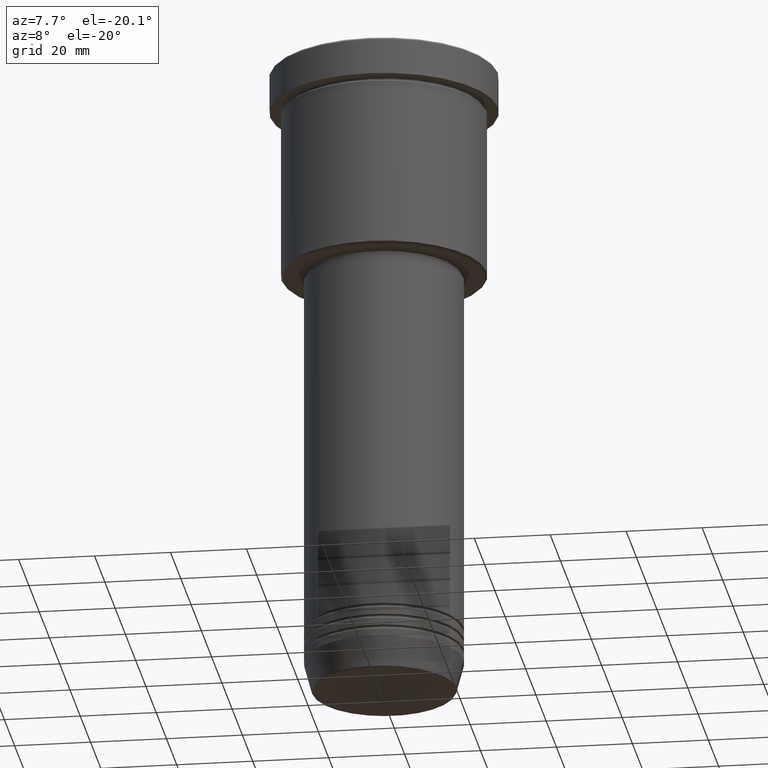
[diagram: clean part render]
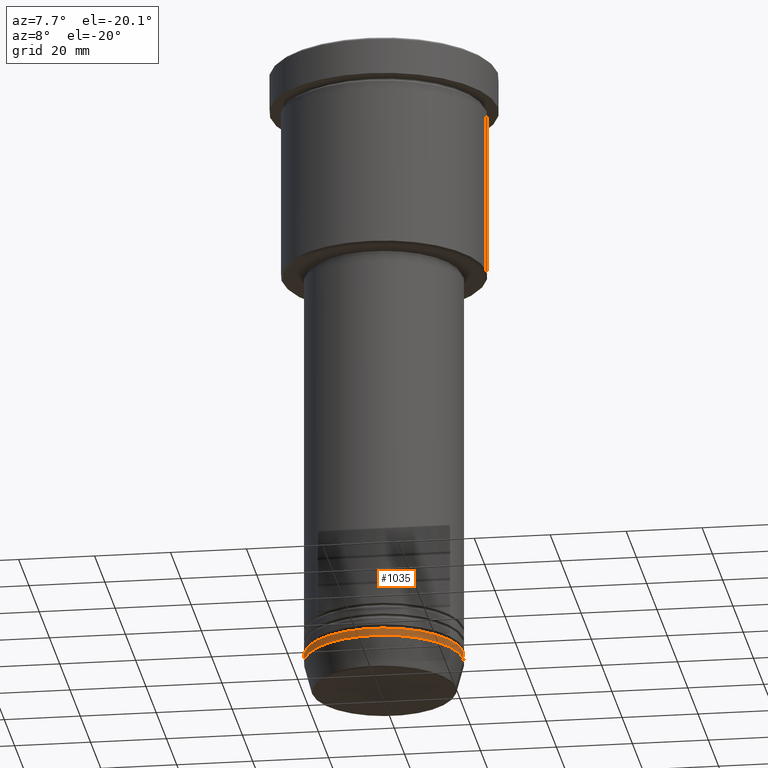
[diagram: same view with one face highlighted and labeled with its STEP entity id]
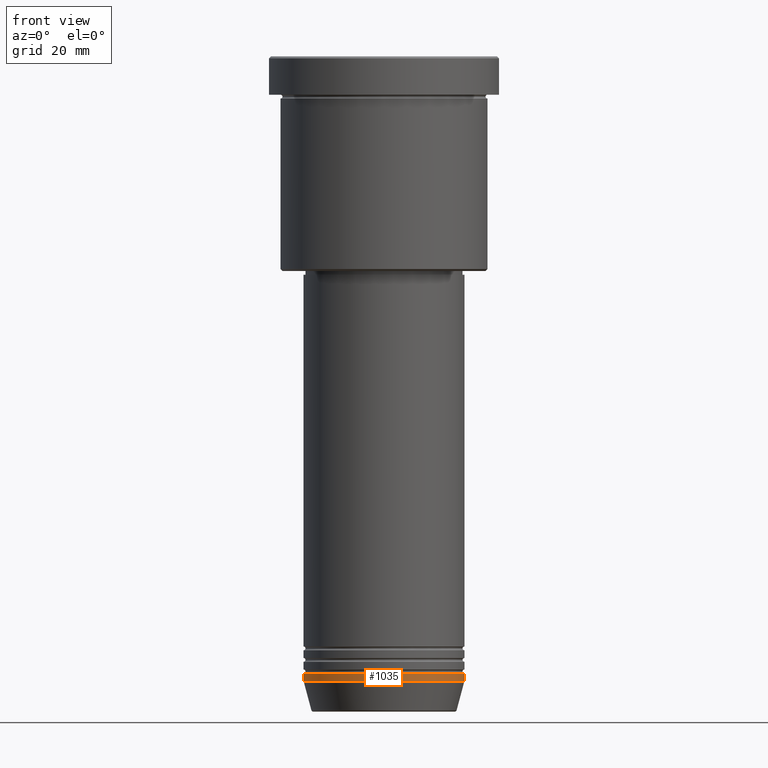
[diagram: same view with one face highlighted and labeled with its STEP entity id]
A machine part, auxiliary view. The second image highlights one B-rep face of the part: STEP entity #1035.
A second angle (front view) of the same face is appended — the face is thin or edge-on in the first view.
In plain terms, the highlighted cylindrical surface (partial cylindrical patch) has radius 21 mm, axis along (-0, -0, 1).
Its self-contained STEP definition (entity closure, byte-faithful):
#8 = LINE ( 'NONE', #641, #164 ) ;
#47 = ORIENTED_EDGE ( 'NONE', *, *, #500, .F. ) ;
#68 = CARTESIAN_POINT ( 'NONE',  ( 21.00000000000000000, 0.000000000000000000, -163.0000000000000000 ) ) ;
#103 = CIRCLE ( 'NONE', #692, 21.00000000000000000 ) ;
#110 = VECTOR ( 'NONE', #833, 1000.000000000000000 ) ;
#111 = CIRCLE ( 'NONE', #443, 21.00000000000000000 ) ;
#114 = CARTESIAN_POINT ( 'NONE',  ( -21.00000000000000000, 2.571758278209441661E-15, -163.0000000000000000 ) ) ;
#125 = DIRECTION ( 'NONE',  ( -0.000000000000000000, -0.000000000000000000, 1.000000000000000000 ) ) ;
#135 = CYLINDRICAL_SURFACE ( 'NONE', #1119, 21.00000000000000000 ) ;
#136 = EDGE_CURVE ( 'NONE', #317, #1068, #103, .T. ) ;
#143 = VERTEX_POINT ( 'NONE', #114 ) ;
#164 = VECTOR ( 'NONE', #1173, 1000.000000000000000 ) ;
#194 = LINE ( 'NONE', #904, #110 ) ;
#217 = DIRECTION ( 'NONE',  ( -0.000000000000000000, -0.000000000000000000, 1.000000000000000000 ) ) ;
#222 = DIRECTION ( 'NONE',  ( 1.000000000000000000, 0.000000000000000000, 0.000000000000000000 ) ) ;
#229 = VERTEX_POINT ( 'NONE', #68 ) ;
#233 = CARTESIAN_POINT ( 'NONE',  ( -21.00000000000000000, 2.571758278209441661E-15, -161.0000000000000000 ) ) ;
#317 = VERTEX_POINT ( 'NONE', #233 ) ;
#331 = CARTESIAN_POINT ( 'NONE',  ( 0.000000000000000000, 0.000000000000000000, -163.0000000000000000 ) ) ;
#377 = EDGE_CURVE ( 'NONE', #229, #1068, #194, .T. ) ;
#382 = EDGE_LOOP ( 'NONE', ( #47, #646, #496, #1163 ) ) ;
#396 = FACE_OUTER_BOUND ( 'NONE', #382, .T. ) ;
#443 = AXIS2_PLACEMENT_3D ( 'NONE', #331, #504, #693 ) ;
#496 = ORIENTED_EDGE ( 'NONE', *, *, #377, .T. ) ;
#500 = EDGE_CURVE ( 'NONE', #143, #317, #8, .T. ) ;
#504 = DIRECTION ( 'NONE',  ( -0.000000000000000000, -0.000000000000000000, 1.000000000000000000 ) ) ;
#641 = CARTESIAN_POINT ( 'NONE',  ( -21.00000000000000000, 2.571758278209441661E-15, 0.000000000000000000 ) ) ;
#646 = ORIENTED_EDGE ( 'NONE', *, *, #709, .T. ) ;
#669 = CARTESIAN_POINT ( 'NONE',  ( 21.00000000000000000, 0.000000000000000000, -161.0000000000000000 ) ) ;
#677 = DIRECTION ( 'NONE',  ( 1.000000000000000000, 0.000000000000000000, 0.000000000000000000 ) ) ;
#692 = AXIS2_PLACEMENT_3D ( 'NONE', #1112, #125, #677 ) ;
#693 = DIRECTION ( 'NONE',  ( 1.000000000000000000, 0.000000000000000000, 0.000000000000000000 ) ) ;
#709 = EDGE_CURVE ( 'NONE', #143, #229, #111, .T. ) ;
#833 = DIRECTION ( 'NONE',  ( -0.000000000000000000, -0.000000000000000000, 1.000000000000000000 ) ) ;
#862 = CARTESIAN_POINT ( 'NONE',  ( 0.000000000000000000, 0.000000000000000000, 0.000000000000000000 ) ) ;
#904 = CARTESIAN_POINT ( 'NONE',  ( 21.00000000000000000, 0.000000000000000000, 0.000000000000000000 ) ) ;
#1035 = ADVANCED_FACE ( 'NONE', ( #396 ), #135, .T. ) ;
#1068 = VERTEX_POINT ( 'NONE', #669 ) ;
#1112 = CARTESIAN_POINT ( 'NONE',  ( 0.000000000000000000, 0.000000000000000000, -161.0000000000000000 ) ) ;
#1119 = AXIS2_PLACEMENT_3D ( 'NONE', #862, #217, #222 ) ;
#1163 = ORIENTED_EDGE ( 'NONE', *, *, #136, .F. ) ;
#1173 = DIRECTION ( 'NONE',  ( -0.000000000000000000, -0.000000000000000000, 1.000000000000000000 ) ) ;